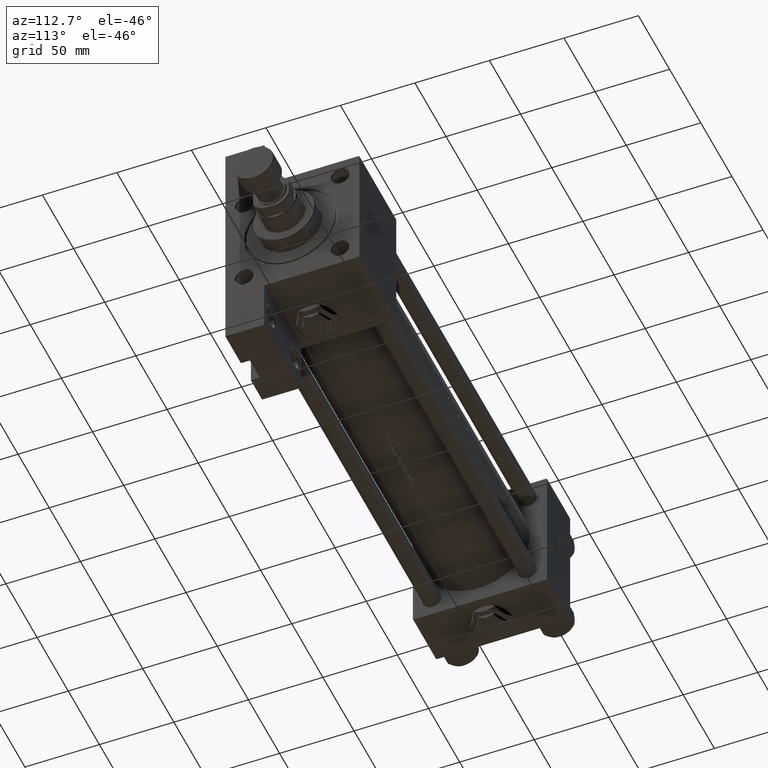
[diagram: clean part render]
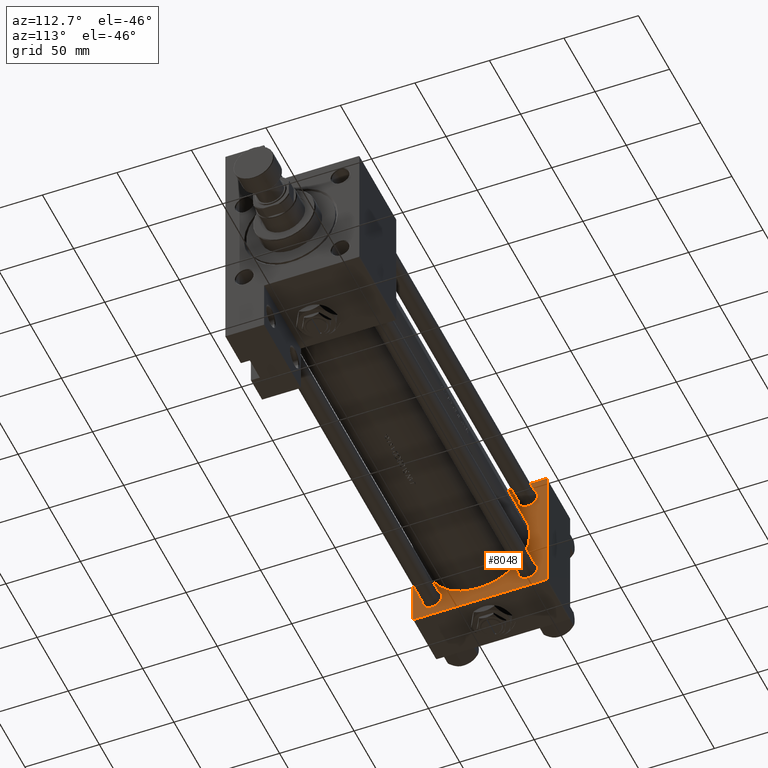
[diagram: same view with one face highlighted and labeled with its STEP entity id]
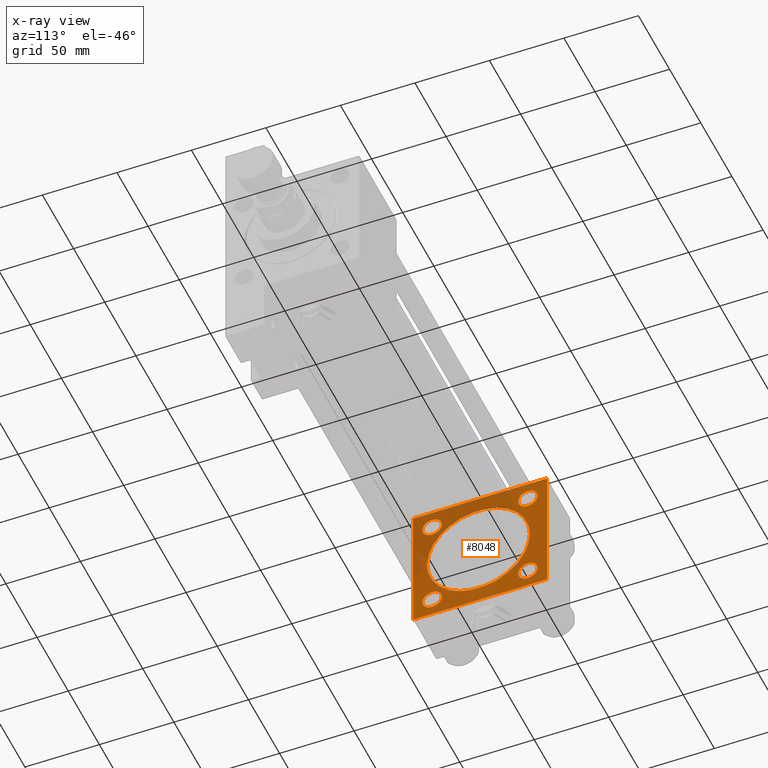
[diagram: x-ray of the same camera — body ghosted, the highlighted face saturated]
A machine part, auxiliary view. The second image highlights one B-rep face of the part: STEP entity #8048.
The next image is the same camera in x-ray: the body ghosted, the highlighted face saturated — about 31% of this face is hidden behind the body in this view.
In plain terms, the highlighted planar face has unit normal (-1, 0, -0).
Its self-contained STEP definition (entity closure, byte-faithful):
#620 = ORIENTED_EDGE ( 'NONE', *, *, #3730, .F. ) ;
#848 = LINE ( 'NONE', #19387, #35952 ) ;
#854 = CARTESIAN_POINT ( 'NONE',  ( 37.00000000000000000, 44.99999999999998579, 44.50000000000001421 ) ) ;
#1235 = CIRCLE ( 'NONE', #26364, 6.499999999999977796 ) ;
#1304 = CARTESIAN_POINT ( 'NONE',  ( 37.00000000000000000, -32.14999999999997726, -32.15000000000001279 ) ) ;
#1504 = CARTESIAN_POINT ( 'NONE',  ( 37.00000000000000711, 0.000000000000000000, -1.000000000000007772 ) ) ;
#1790 = DIRECTION ( 'NONE',  ( -1.000000000000000000, 0.000000000000000000, -0.000000000000000000 ) ) ;
#1796 = AXIS2_PLACEMENT_3D ( 'NONE', #12667, #39584, #42369 ) ;
#2025 = VERTEX_POINT ( 'NONE', #40963 ) ;
#2199 = EDGE_CURVE ( 'NONE', #36332, #3766, #9942, .T. ) ;
#2265 = CARTESIAN_POINT ( 'NONE',  ( 37.00000000000000711, 0.000000000000000000, 33.49999999999998579 ) ) ;
#2613 = CARTESIAN_POINT ( 'NONE',  ( 37.00000000000000000, -45.00000000000000000, -44.49999999999995737 ) ) ;
#3440 = CARTESIAN_POINT ( 'NONE',  ( 37.00000000000000000, -45.00000000000000711, 44.49999999999997158 ) ) ;
#3514 = EDGE_LOOP ( 'NONE', ( #36683, #25959 ) ) ;
#3730 = EDGE_CURVE ( 'NONE', #7628, #47874, #37850, .T. ) ;
#3766 = VERTEX_POINT ( 'NONE', #46951 ) ;
#3904 = AXIS2_PLACEMENT_3D ( 'NONE', #5070, #35798, #44425 ) ;
#4556 = VERTEX_POINT ( 'NONE', #34298 ) ;
#4820 = VERTEX_POINT ( 'NONE', #2265 ) ;
#5070 = CARTESIAN_POINT ( 'NONE',  ( 37.00000000000000000, 32.14999999999999147, 32.15000000000000568 ) ) ;
#5986 = CARTESIAN_POINT ( 'NONE',  ( 37.00000000000000000, -44.49999999999995737, -45.00000000000000000 ) ) ;
#6167 = LINE ( 'NONE', #13784, #34023 ) ;
#6287 = CARTESIAN_POINT ( 'NONE',  ( 37.00000000000000711, 0.000000000000000000, -1.000000000000007772 ) ) ;
#6658 = EDGE_CURVE ( 'NONE', #7628, #17927, #848, .T. ) ;
#7088 = DIRECTION ( 'NONE',  ( 0.000000000000000000, 0.000000000000000000, 1.000000000000000000 ) ) ;
#7092 = VERTEX_POINT ( 'NONE', #32962 ) ;
#7242 = LINE ( 'NONE', #3440, #37119 ) ;
#7251 = AXIS2_PLACEMENT_3D ( 'NONE', #29726, #49240, #7088 ) ;
#7628 = VERTEX_POINT ( 'NONE', #854 ) ;
#8048 = ADVANCED_FACE ( 'NONE', ( #47495, #28220, #9153, #47733, #40644, #13222 ), #44210, .F. ) ;
#8178 = VERTEX_POINT ( 'NONE', #25325 ) ;
#8377 = VERTEX_POINT ( 'NONE', #8738 ) ;
#8567 = ORIENTED_EDGE ( 'NONE', *, *, #41396, .T. ) ;
#8738 = CARTESIAN_POINT ( 'NONE',  ( 37.00000000000000000, -32.14999999999997726, 25.65000000000003411 ) ) ;
#9145 = EDGE_CURVE ( 'NONE', #46032, #4556, #27905, .T. ) ;
#9153 = FACE_BOUND ( 'NONE', #41608, .T. ) ;
#9263 = VERTEX_POINT ( 'NONE', #41231 ) ;
#9942 = CIRCLE ( 'NONE', #18065, 6.499999999999977796 ) ;
#10528 = DIRECTION ( 'NONE',  ( -1.000000000000000000, 0.000000000000000000, -0.000000000000000000 ) ) ;
#11228 = DIRECTION ( 'NONE',  ( 0.000000000000000000, 0.7071067811865474617, -0.7071067811865474617 ) ) ;
#12667 = CARTESIAN_POINT ( 'NONE',  ( 37.00000000000000000, -32.14999999999997726, 32.15000000000001279 ) ) ;
#12960 = VERTEX_POINT ( 'NONE', #33821 ) ;
#13222 = FACE_OUTER_BOUND ( 'NONE', #27395, .T. ) ;
#13687 = EDGE_CURVE ( 'NONE', #42408, #9263, #14296, .T. ) ;
#13722 = VECTOR ( 'NONE', #11228, 1000.000000000000114 ) ;
#13784 = CARTESIAN_POINT ( 'NONE',  ( 37.00000000000000000, 44.99999999999998579, -44.99999999999998579 ) ) ;
#14296 = CIRCLE ( 'NONE', #29708, 6.499999999999977796 ) ;
#14455 = CIRCLE ( 'NONE', #14524, 6.499999999999977796 ) ;
#14524 = AXIS2_PLACEMENT_3D ( 'NONE', #30696, #18493, #48977 ) ;
#14903 = AXIS2_PLACEMENT_3D ( 'NONE', #24670, #1790, #28725 ) ;
#14909 = DIRECTION ( 'NONE',  ( 0.000000000000000000, 0.000000000000000000, 1.000000000000000000 ) ) ;
#15115 = CARTESIAN_POINT ( 'NONE',  ( 37.00000000000000000, 32.14999999999999147, 32.15000000000000568 ) ) ;
#15454 = AXIS2_PLACEMENT_3D ( 'NONE', #1504, #16743, #17493 ) ;
#15731 = CARTESIAN_POINT ( 'NONE',  ( 37.00000000000000000, -32.14999999999997726, -38.64999999999999147 ) ) ;
#16087 = DIRECTION ( 'NONE',  ( 0.000000000000000000, -0.7071067811865474617, 0.7071067811865474617 ) ) ;
#16743 = DIRECTION ( 'NONE',  ( 1.000000000000000000, -0.000000000000000000, 0.000000000000000000 ) ) ;
#16777 = ORIENTED_EDGE ( 'NONE', *, *, #18625, .T. ) ;
#17493 = DIRECTION ( 'NONE',  ( 0.000000000000000000, 0.000000000000000000, 1.000000000000000000 ) ) ;
#17796 = ORIENTED_EDGE ( 'NONE', *, *, #39075, .T. ) ;
#17927 = VERTEX_POINT ( 'NONE', #23241 ) ;
#18046 = ORIENTED_EDGE ( 'NONE', *, *, #31867, .F. ) ;
#18065 = AXIS2_PLACEMENT_3D ( 'NONE', #1304, #39131, #23396 ) ;
#18493 = DIRECTION ( 'NONE',  ( -1.000000000000000000, 0.000000000000000000, -0.000000000000000000 ) ) ;
#18625 = EDGE_CURVE ( 'NONE', #2025, #35190, #25634, .T. ) ;
#18738 = AXIS2_PLACEMENT_3D ( 'NONE', #6287, #37268, #14909 ) ;
#18935 = DIRECTION ( 'NONE',  ( -0.000000000000000000, -0.7071067811865425767, -0.7071067811865524577 ) ) ;
#19212 = EDGE_CURVE ( 'NONE', #8178, #2025, #7242, .T. ) ;
#19387 = CARTESIAN_POINT ( 'NONE',  ( 37.00000000000000000, 44.49999999999998579, 45.00000000000001421 ) ) ;
#19495 = ORIENTED_EDGE ( 'NONE', *, *, #23111, .T. ) ;
#19774 = ORIENTED_EDGE ( 'NONE', *, *, #28272, .T. ) ;
#20162 = EDGE_CURVE ( 'NONE', #4556, #46032, #33089, .T. ) ;
#21934 = EDGE_CURVE ( 'NONE', #7092, #8377, #14455, .T. ) ;
#22347 = DIRECTION ( 'NONE',  ( -1.000000000000000000, 0.000000000000000000, -0.000000000000000000 ) ) ;
#23111 = EDGE_CURVE ( 'NONE', #35190, #28037, #30550, .T. ) ;
#23241 = CARTESIAN_POINT ( 'NONE',  ( 37.00000000000000000, 44.49999999999998579, 45.00000000000001421 ) ) ;
#23396 = DIRECTION ( 'NONE',  ( 0.000000000000000000, 0.000000000000000000, 1.000000000000000000 ) ) ;
#23871 = CARTESIAN_POINT ( 'NONE',  ( 37.00000000000000711, 4.225031457058367344E-15, -35.50000000000000711 ) ) ;
#23878 = AXIS2_PLACEMENT_3D ( 'NONE', #15115, #10528, #30612 ) ;
#23948 = ORIENTED_EDGE ( 'NONE', *, *, #13687, .T. ) ;
#24670 = CARTESIAN_POINT ( 'NONE',  ( 37.00000000000000000, 0.000000000000000000, 0.000000000000000000 ) ) ;
#25138 = DIRECTION ( 'NONE',  ( 0.000000000000000000, 7.709882115452476934E-17, -1.000000000000000000 ) ) ;
#25225 = EDGE_CURVE ( 'NONE', #12960, #28037, #6167, .T. ) ;
#25229 = DIRECTION ( 'NONE',  ( 0.000000000000000000, -1.000000000000000000, -1.541976423090495633E-16 ) ) ;
#25325 = CARTESIAN_POINT ( 'NONE',  ( 37.00000000000000000, -44.49999999999995737, 45.00000000000000000 ) ) ;
#25634 = LINE ( 'NONE', #28946, #27715 ) ;
#25959 = ORIENTED_EDGE ( 'NONE', *, *, #9145, .T. ) ;
#26364 = AXIS2_PLACEMENT_3D ( 'NONE', #36342, #22347, #37328 ) ;
#26665 = EDGE_CURVE ( 'NONE', #4820, #43700, #30878, .T. ) ;
#27395 = EDGE_LOOP ( 'NONE', ( #49386, #17796, #620, #37568, #49893, #42209, #16777, #19495 ) ) ;
#27715 = VECTOR ( 'NONE', #25138, 1000.000000000000000 ) ;
#27732 = DIRECTION ( 'NONE',  ( 0.000000000000000000, -1.000000000000000000, -1.541976423090495387E-16 ) ) ;
#27905 = CIRCLE ( 'NONE', #23878, 6.499999999999977796 ) ;
#28037 = VERTEX_POINT ( 'NONE', #5986 ) ;
#28220 = FACE_BOUND ( 'NONE', #41999, .T. ) ;
#28272 = EDGE_CURVE ( 'NONE', #9263, #42408, #37281, .T. ) ;
#28528 = CIRCLE ( 'NONE', #18738, 34.49999999999999289 ) ;
#28671 = VECTOR ( 'NONE', #49501, 1000.000000000000000 ) ;
#28725 = DIRECTION ( 'NONE',  ( -0.000000000000000000, 0.000000000000000000, 1.000000000000000000 ) ) ;
#28946 = CARTESIAN_POINT ( 'NONE',  ( 37.00000000000000000, -45.00000000000000711, 45.00000000000000000 ) ) ;
#29376 = LINE ( 'NONE', #45351, #48185 ) ;
#29708 = AXIS2_PLACEMENT_3D ( 'NONE', #50121, #34412, #31375 ) ;
#29726 = CARTESIAN_POINT ( 'NONE',  ( 37.00000000000000000, 32.14999999999999147, -32.15000000000000568 ) ) ;
#30550 = LINE ( 'NONE', #46010, #13722 ) ;
#30612 = DIRECTION ( 'NONE',  ( 0.000000000000000000, 0.000000000000000000, 1.000000000000000000 ) ) ;
#30696 = CARTESIAN_POINT ( 'NONE',  ( 37.00000000000000000, -32.14999999999997726, 32.15000000000001279 ) ) ;
#30878 = CIRCLE ( 'NONE', #15454, 34.49999999999999289 ) ;
#31375 = DIRECTION ( 'NONE',  ( 0.000000000000000000, 0.000000000000000000, 1.000000000000000000 ) ) ;
#31867 = EDGE_CURVE ( 'NONE', #43700, #4820, #28528, .T. ) ;
#32299 = LINE ( 'NONE', #39152, #49800 ) ;
#32462 = ORIENTED_EDGE ( 'NONE', *, *, #2199, .T. ) ;
#32962 = CARTESIAN_POINT ( 'NONE',  ( 37.00000000000000000, -32.14999999999997726, 38.64999999999999147 ) ) ;
#33089 = CIRCLE ( 'NONE', #3904, 6.499999999999977796 ) ;
#33746 = EDGE_CURVE ( 'NONE', #8377, #7092, #47993, .T. ) ;
#33821 = CARTESIAN_POINT ( 'NONE',  ( 37.00000000000000000, 44.49999999999998579, -44.99999999999998579 ) ) ;
#34023 = VECTOR ( 'NONE', #25229, 1000.000000000000000 ) ;
#34298 = CARTESIAN_POINT ( 'NONE',  ( 37.00000000000000000, 32.14999999999999147, 25.65000000000002700 ) ) ;
#34412 = DIRECTION ( 'NONE',  ( -1.000000000000000000, 0.000000000000000000, -0.000000000000000000 ) ) ;
#35190 = VERTEX_POINT ( 'NONE', #2613 ) ;
#35407 = ORIENTED_EDGE ( 'NONE', *, *, #21934, .T. ) ;
#35798 = DIRECTION ( 'NONE',  ( -1.000000000000000000, 0.000000000000000000, -0.000000000000000000 ) ) ;
#35952 = VECTOR ( 'NONE', #16087, 1000.000000000000114 ) ;
#36332 = VERTEX_POINT ( 'NONE', #15731 ) ;
#36342 = CARTESIAN_POINT ( 'NONE',  ( 37.00000000000000000, -32.14999999999997726, -32.15000000000001279 ) ) ;
#36414 = CARTESIAN_POINT ( 'NONE',  ( 37.00000000000000000, 32.14999999999999147, 38.64999999999998437 ) ) ;
#36683 = ORIENTED_EDGE ( 'NONE', *, *, #20162, .T. ) ;
#37119 = VECTOR ( 'NONE', #18935, 1000.000000000000114 ) ;
#37268 = DIRECTION ( 'NONE',  ( 1.000000000000000000, -0.000000000000000000, 0.000000000000000000 ) ) ;
#37281 = CIRCLE ( 'NONE', #7251, 6.499999999999977796 ) ;
#37328 = DIRECTION ( 'NONE',  ( 0.000000000000000000, 0.000000000000000000, 1.000000000000000000 ) ) ;
#37568 = ORIENTED_EDGE ( 'NONE', *, *, #6658, .T. ) ;
#37850 = LINE ( 'NONE', #50007, #28671 ) ;
#39075 = EDGE_CURVE ( 'NONE', #12960, #47874, #29376, .T. ) ;
#39131 = DIRECTION ( 'NONE',  ( -1.000000000000000000, 0.000000000000000000, -0.000000000000000000 ) ) ;
#39152 = CARTESIAN_POINT ( 'NONE',  ( 37.00000000000000000, 44.99999999999998579, 45.00000000000001421 ) ) ;
#39584 = DIRECTION ( 'NONE',  ( -1.000000000000000000, 0.000000000000000000, -0.000000000000000000 ) ) ;
#40543 = EDGE_LOOP ( 'NONE', ( #43927, #18046 ) ) ;
#40644 = FACE_BOUND ( 'NONE', #40543, .T. ) ;
#40759 = ORIENTED_EDGE ( 'NONE', *, *, #33746, .T. ) ;
#40963 = CARTESIAN_POINT ( 'NONE',  ( 37.00000000000000000, -45.00000000000000711, 44.49999999999997158 ) ) ;
#41231 = CARTESIAN_POINT ( 'NONE',  ( 37.00000000000000000, 32.14999999999999147, -38.64999999999998437 ) ) ;
#41396 = EDGE_CURVE ( 'NONE', #3766, #36332, #1235, .T. ) ;
#41608 = EDGE_LOOP ( 'NONE', ( #40759, #35407 ) ) ;
#41999 = EDGE_LOOP ( 'NONE', ( #19774, #23948 ) ) ;
#42209 = ORIENTED_EDGE ( 'NONE', *, *, #19212, .T. ) ;
#42369 = DIRECTION ( 'NONE',  ( 0.000000000000000000, 0.000000000000000000, 1.000000000000000000 ) ) ;
#42408 = VERTEX_POINT ( 'NONE', #43956 ) ;
#42680 = CARTESIAN_POINT ( 'NONE',  ( 37.00000000000000000, 44.99999999999998579, -44.49999999999995737 ) ) ;
#43237 = EDGE_CURVE ( 'NONE', #17927, #8178, #32299, .T. ) ;
#43700 = VERTEX_POINT ( 'NONE', #23871 ) ;
#43927 = ORIENTED_EDGE ( 'NONE', *, *, #26665, .F. ) ;
#43956 = CARTESIAN_POINT ( 'NONE',  ( 37.00000000000000000, 32.14999999999999147, -25.65000000000002700 ) ) ;
#44210 = PLANE ( 'NONE',  #14903 ) ;
#44425 = DIRECTION ( 'NONE',  ( 0.000000000000000000, 0.000000000000000000, 1.000000000000000000 ) ) ;
#45351 = CARTESIAN_POINT ( 'NONE',  ( 37.00000000000000000, 44.99999999999998579, -44.49999999999998579 ) ) ;
#46010 = CARTESIAN_POINT ( 'NONE',  ( 37.00000000000000000, -44.49999999999998579, -45.00000000000000000 ) ) ;
#46032 = VERTEX_POINT ( 'NONE', #36414 ) ;
#46951 = CARTESIAN_POINT ( 'NONE',  ( 37.00000000000000000, -32.14999999999997726, -25.65000000000003411 ) ) ;
#47495 = FACE_BOUND ( 'NONE', #49039, .T. ) ;
#47733 = FACE_BOUND ( 'NONE', #3514, .T. ) ;
#47874 = VERTEX_POINT ( 'NONE', #42680 ) ;
#47993 = CIRCLE ( 'NONE', #1796, 6.499999999999977796 ) ;
#48162 = DIRECTION ( 'NONE',  ( -0.000000000000000000, 0.7071067811865474617, 0.7071067811865474617 ) ) ;
#48185 = VECTOR ( 'NONE', #48162, 1000.000000000000114 ) ;
#48977 = DIRECTION ( 'NONE',  ( 0.000000000000000000, 0.000000000000000000, 1.000000000000000000 ) ) ;
#49039 = EDGE_LOOP ( 'NONE', ( #32462, #8567 ) ) ;
#49240 = DIRECTION ( 'NONE',  ( -1.000000000000000000, 0.000000000000000000, -0.000000000000000000 ) ) ;
#49386 = ORIENTED_EDGE ( 'NONE', *, *, #25225, .F. ) ;
#49501 = DIRECTION ( 'NONE',  ( 0.000000000000000000, 0.000000000000000000, -1.000000000000000000 ) ) ;
#49800 = VECTOR ( 'NONE', #27732, 1000.000000000000000 ) ;
#49893 = ORIENTED_EDGE ( 'NONE', *, *, #43237, .T. ) ;
#50007 = CARTESIAN_POINT ( 'NONE',  ( 37.00000000000000000, 44.99999999999998579, 45.00000000000001421 ) ) ;
#50121 = CARTESIAN_POINT ( 'NONE',  ( 37.00000000000000000, 32.14999999999999147, -32.15000000000000568 ) ) ;